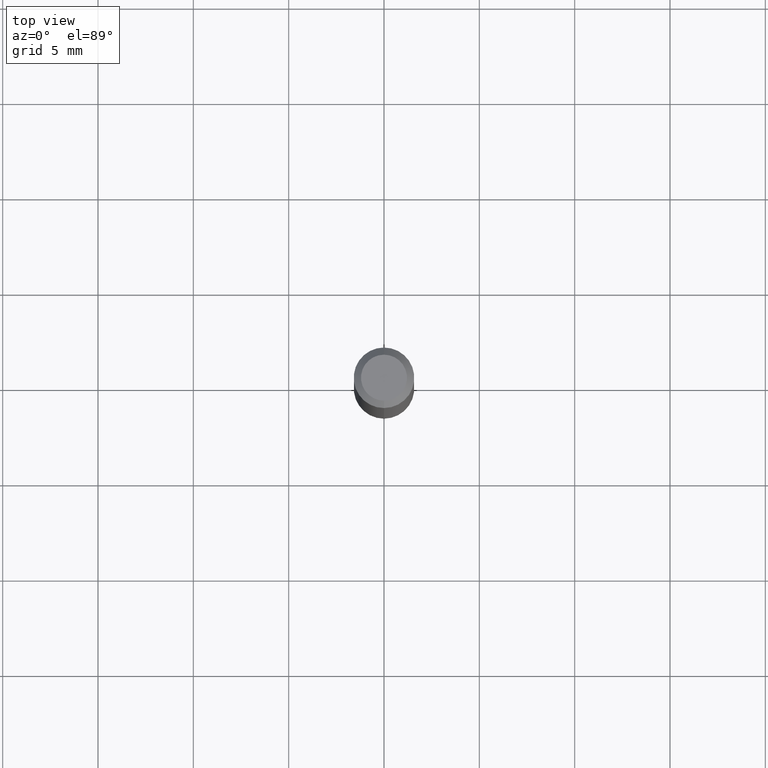
[diagram: clean part render]
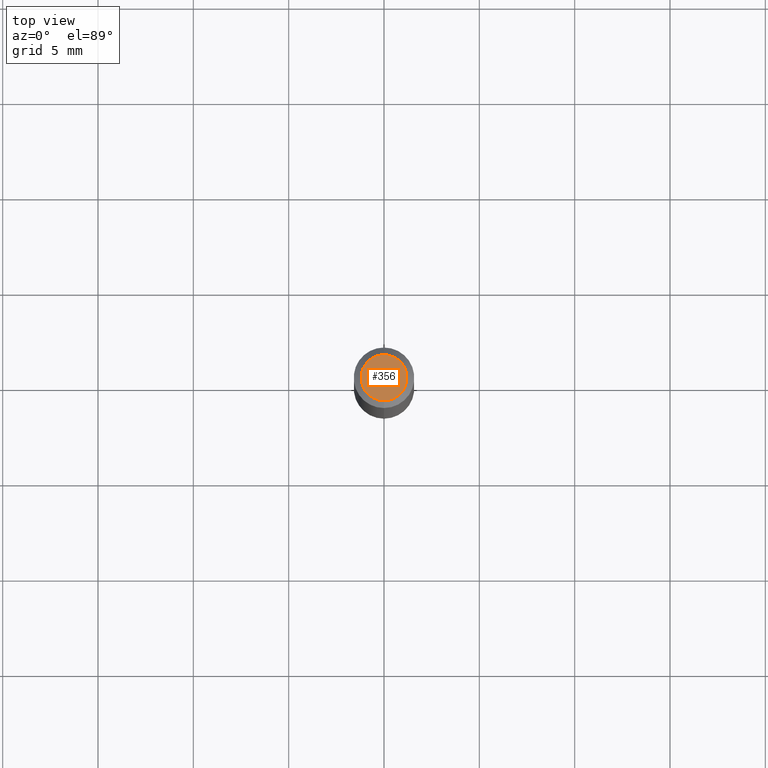
[diagram: same view with one face highlighted and labeled with its STEP entity id]
A machine part, top view. The second image highlights one B-rep face of the part: STEP entity #356.
In plain terms, the highlighted planar face has unit normal (0, -0, -1).
Its self-contained STEP definition (entity closure, byte-faithful):
#13 = CARTESIAN_POINT ( 'NONE',  ( -3.773273898774340269E-16, -0.04749999999999999362, 1.569871337916932575E-16 ) ) ;
#14 = CARTESIAN_POINT ( 'NONE',  ( 2.166494383139893179E-46, -3.093218716665086637E-32, -8.859274697593624976E-18 ) ) ;
#23 = EDGE_CURVE ( 'NONE', #127, #438, #104, .T. ) ;
#56 = DIRECTION ( 'NONE',  ( 6.982962677686265922E-15, 1.000000000000000000, -3.491503336616566334E-15 ) ) ;
#58 = FACE_OUTER_BOUND ( 'NONE', #405, .T. ) ;
#67 = CARTESIAN_POINT ( 'NONE',  ( 2.166494383139893179E-46, -3.093218716665086637E-32, -8.859274697593624976E-18 ) ) ;
#104 = CIRCLE ( 'NONE', #406, 0.04749999999999999362 ) ;
#127 = VERTEX_POINT ( 'NONE', #13 ) ;
#130 = DIRECTION ( 'NONE',  ( -6.982962677686266711E-15, -1.000000000000000000, 3.491503336616566334E-15 ) ) ;
#202 = CARTESIAN_POINT ( 'NONE',  ( 3.840629472727447874E-16, 0.04749999999999999362, -1.747056831868805136E-16 ) ) ;
#207 = CARTESIAN_POINT ( 'NONE',  ( 3.316907271900976096E-16, 0.04749999999999999362, -1.702760458380836811E-16 ) ) ;
#218 = DIRECTION ( 'NONE',  ( -2.445453445222057768E-29, 3.491503336616566334E-15, 1.000000000000000000 ) ) ;
#239 = DIRECTION ( 'NONE',  ( 2.445453445222057488E-29, -3.491503336616566334E-15, -1.000000000000000000 ) ) ;
#240 = ORIENTED_EDGE ( 'NONE', *, *, #429, .T. ) ;
#242 = AXIS2_PLACEMENT_3D ( 'NONE', #207, #239, #56 ) ;
#263 = DIRECTION ( 'NONE',  ( -6.982962677686266711E-15, -1.000000000000000000, 3.491503336616566334E-15 ) ) ;
#264 = AXIS2_PLACEMENT_3D ( 'NONE', #14, #490, #130 ) ;
#356 = ADVANCED_FACE ( 'NONE', ( #58 ), #456, .F. ) ;
#367 = ORIENTED_EDGE ( 'NONE', *, *, #23, .T. ) ;
#405 = EDGE_LOOP ( 'NONE', ( #240, #367 ) ) ;
#406 = AXIS2_PLACEMENT_3D ( 'NONE', #67, #218, #263 ) ;
#429 = EDGE_CURVE ( 'NONE', #438, #127, #451, .T. ) ;
#438 = VERTEX_POINT ( 'NONE', #202 ) ;
#451 = CIRCLE ( 'NONE', #264, 0.04749999999999999362 ) ;
#456 = PLANE ( 'NONE',  #242 ) ;
#490 = DIRECTION ( 'NONE',  ( -2.445453445222057768E-29, 3.491503336616566334E-15, 1.000000000000000000 ) ) ;